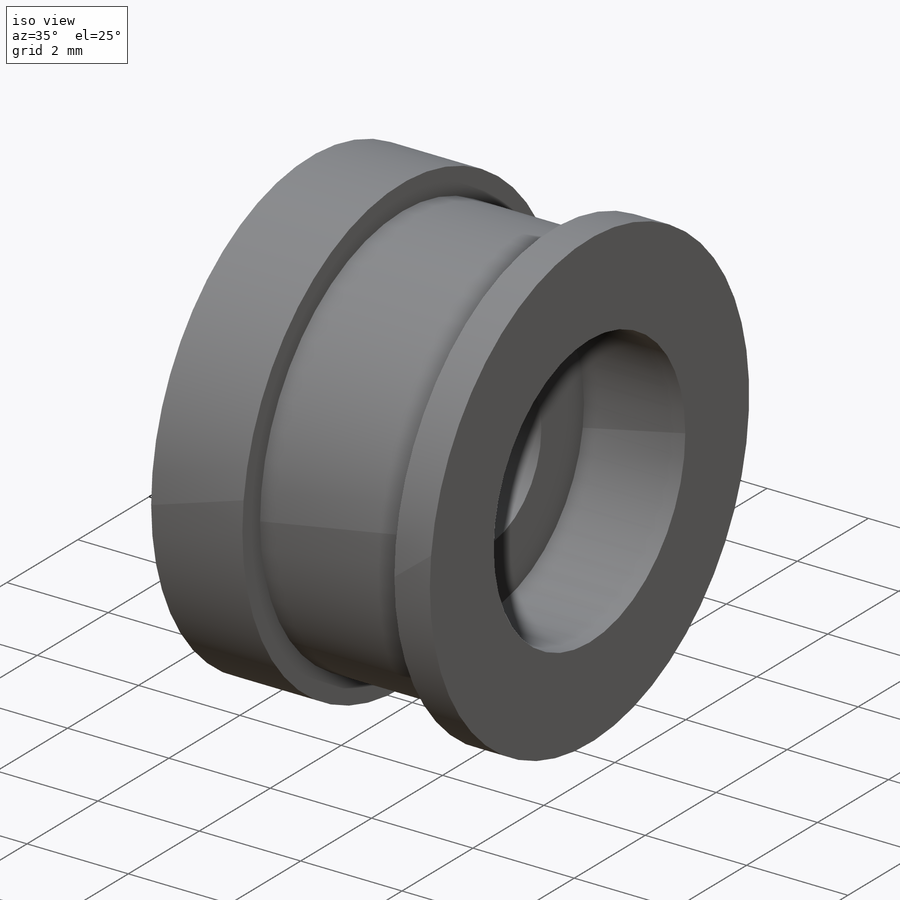
[diagram: iso view]
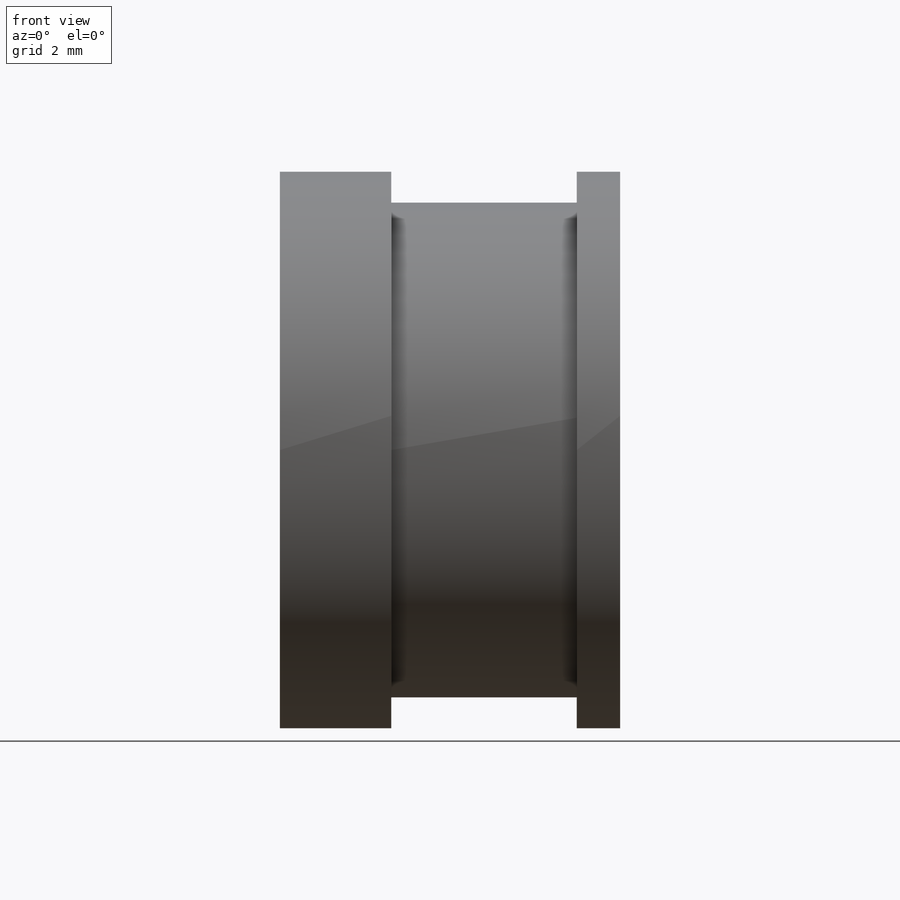
[diagram: front view]
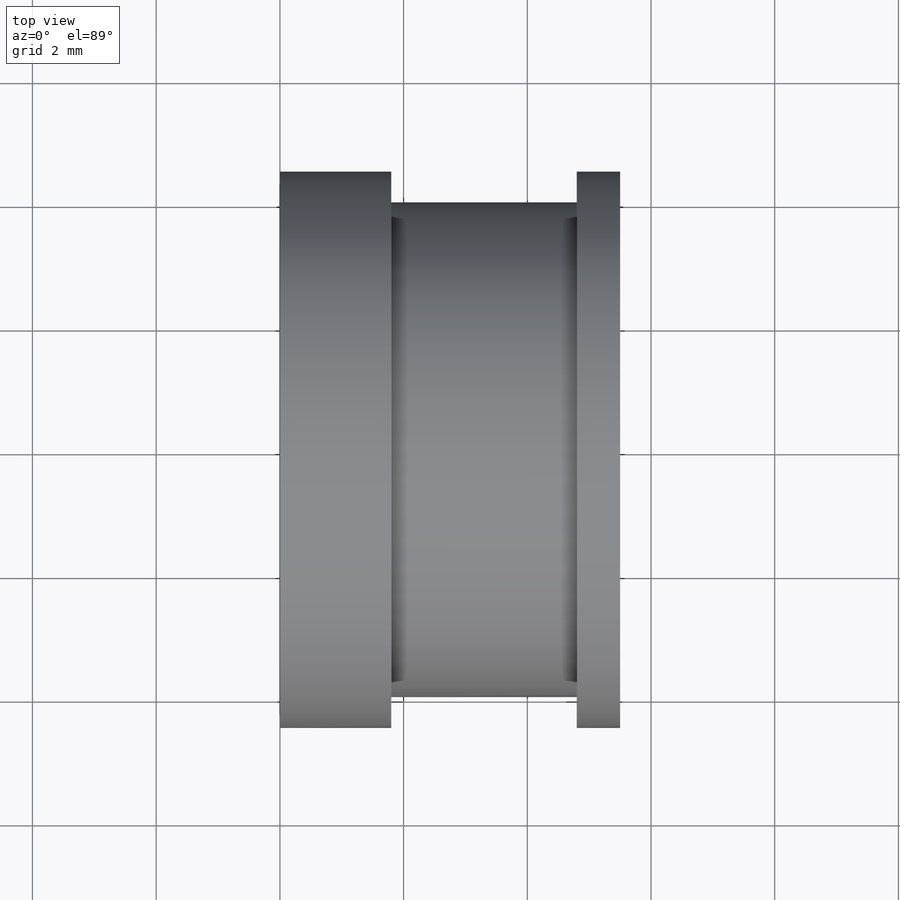
[diagram: top view]
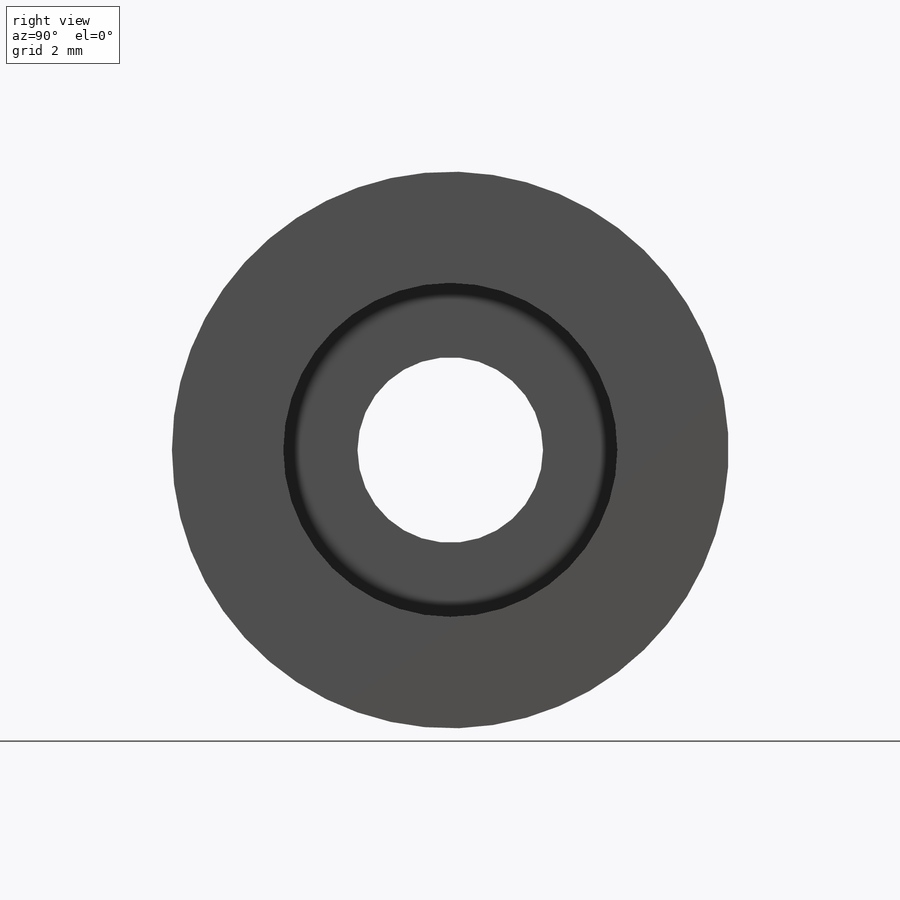
[diagram: right view]
SOLIDWORKS PART (.sldprt)
format: sldprt  version: not decoded by parser v0  size: 158,208 bytes
history: native  units: mm
features: sketch x3, cut_extrude x2, material x1, revolve x1 (+12 scaffold rows collapsed)
feature tree (19):
  scaffold x12  (default folders/planes/origin — collapsed)
  material  "Material <not specified>"
  sketch  "Sketch1"  dims[D1=4.5mm D2=1.8mm D3=0.5mm D4=5.5mm D5=4.5mm D6=0.7mm]
  revolve  "Revolve1"  Angle=360deg
  sketch  "Sketch2"  dims[D1=3.0mm]
  cut_extrude  "Cut-Extrude1"  Depth=10mm
  sketch  "Sketch3"  dims[D1=5.4mm]
  cut_extrude  "Cut-Extrude2"  Depth=2mm
decode coverage: 6 of 6 modeling features carry decoded parameters
note: suppression state not decoded; provenance and decode notes live in map.json
